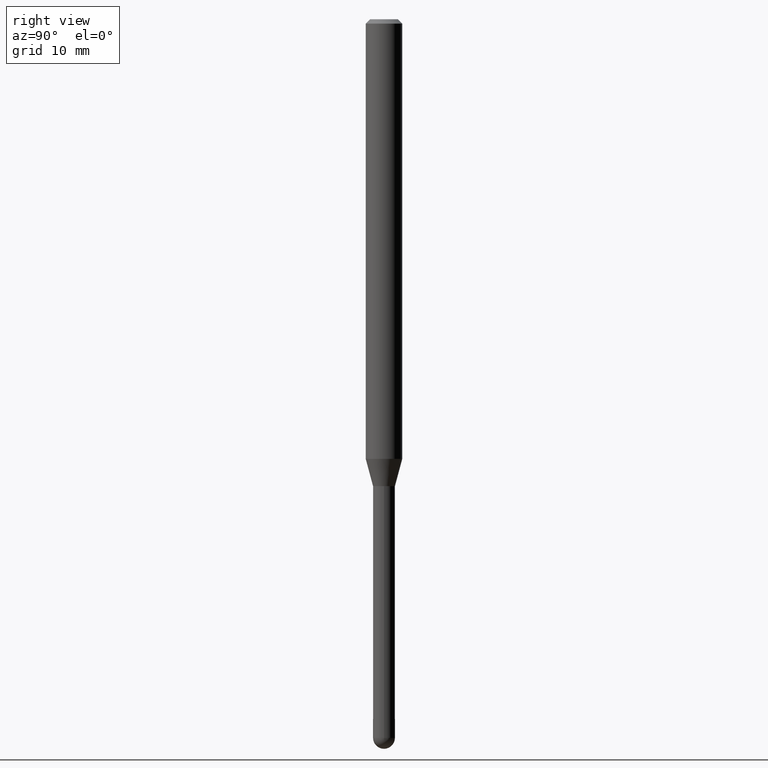
[diagram: clean part render]
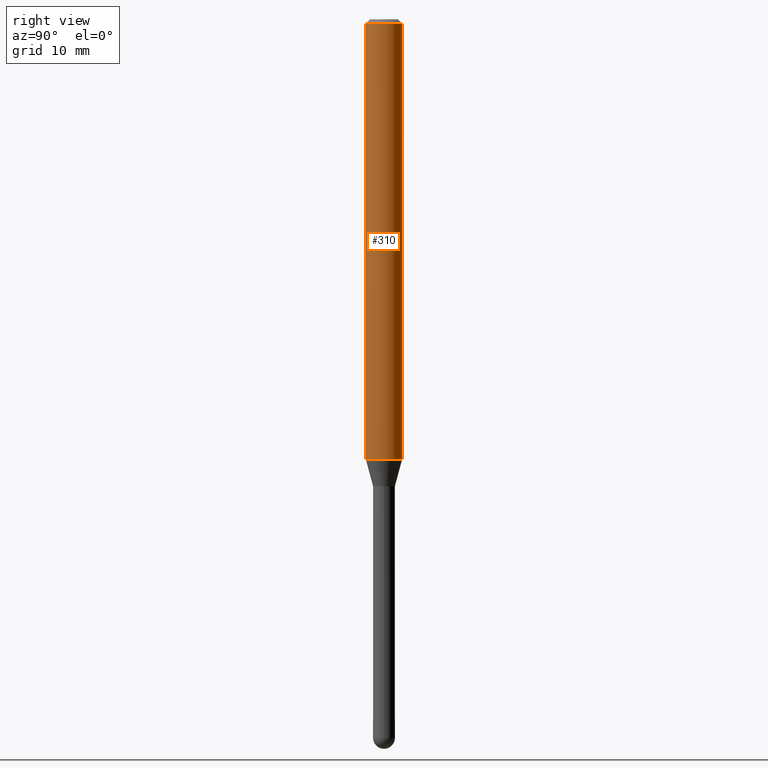
[diagram: same view with one face highlighted and labeled with its STEP entity id]
A machine part, right view. The second image highlights one B-rep face of the part: STEP entity #310.
In plain terms, the highlighted cylindrical surface (edge-blend (fillet) strip) has radius 1.5875 mm, axis along (-0, 0, 1).
Its self-contained STEP definition (entity closure, byte-faithful):
#16 = DIRECTION ( 'NONE',  ( -2.445449366316868324E-29, 3.491509177840954321E-15, 1.000000000000000000 ) ) ;
#26 = EDGE_CURVE ( 'NONE', #428, #360, #108, .T. ) ;
#29 = CARTESIAN_POINT ( 'NONE',  ( 3.684555454046204946E-29, -5.260652443375649758E-15, -1.506698729810781012 ) ) ;
#38 = VERTEX_POINT ( 'NONE', #145 ) ;
#73 = DIRECTION ( 'NONE',  ( -6.982962677686265922E-15, -1.000000000000000000, 4.370956789862821150E-15 ) ) ;
#75 = ORIENTED_EDGE ( 'NONE', *, *, #26, .T. ) ;
#106 = DIRECTION ( 'NONE',  ( -6.982962677686265922E-15, -1.000000000000000000, 3.491509177840954321E-15 ) ) ;
#108 = CIRCLE ( 'NONE', #248, 0.06250000000000000000 ) ;
#115 = DIRECTION ( 'NONE',  ( -2.445449366316868324E-29, 3.491509177840954321E-15, 1.000000000000000000 ) ) ;
#121 = CARTESIAN_POINT ( 'NONE',  ( -4.364351673553550860E-16, -0.06250000000000530131, -1.506698729810780790 ) ) ;
#135 = LINE ( 'NONE', #138, #261 ) ;
#138 = CARTESIAN_POINT ( 'NONE',  ( 4.440892098500625669E-16, 0.06250000000000000000, -2.182193236150596451E-16 ) ) ;
#145 = CARTESIAN_POINT ( 'NONE',  ( 4.440892098500996926E-16, 0.06249999999999995837, -0.01500000000000028394 ) ) ;
#153 = CARTESIAN_POINT ( 'NONE',  ( -4.364351673553916201E-16, -0.06250000000000000000, 2.182193236150596451E-16 ) ) ;
#156 = EDGE_LOOP ( 'NONE', ( #75, #227, #407, #196 ) ) ;
#179 = DIRECTION ( 'NONE',  ( -2.445449366316868324E-29, 3.491509177840954321E-15, 1.000000000000000000 ) ) ;
#182 = CARTESIAN_POINT ( 'NONE',  ( 4.440892098500991010E-16, 0.06249999999999470562, -1.506698729810781234 ) ) ;
#196 = ORIENTED_EDGE ( 'NONE', *, *, #396, .F. ) ;
#210 = CARTESIAN_POINT ( 'NONE',  ( 0.000000000000000000, 0.000000000000000000, 0.000000000000000000 ) ) ;
#225 = CIRCLE ( 'NONE', #289, 0.06250000000000000000 ) ;
#227 = ORIENTED_EDGE ( 'NONE', *, *, #475, .T. ) ;
#246 = DIRECTION ( 'NONE',  ( -2.445449366316868604E-29, 3.491509177840953927E-15, 1.000000000000000000 ) ) ;
#248 = AXIS2_PLACEMENT_3D ( 'NONE', #29, #115, #73 ) ;
#253 = FACE_OUTER_BOUND ( 'NONE', #156, .T. ) ;
#261 = VECTOR ( 'NONE', #246, 39.37007874015748143 ) ;
#289 = AXIS2_PLACEMENT_3D ( 'NONE', #366, #16, #487 ) ;
#304 = VERTEX_POINT ( 'NONE', #367 ) ;
#310 = ADVANCED_FACE ( 'NONE', ( #253 ), #417, .T. ) ;
#360 = VERTEX_POINT ( 'NONE', #182 ) ;
#366 = CARTESIAN_POINT ( 'NONE',  ( 3.668174049475319214E-31, -5.237263766761454039E-17, -0.01500000000000006710 ) ) ;
#367 = CARTESIAN_POINT ( 'NONE',  ( -4.364351673553912750E-16, -0.06250000000000005551, -0.01499999999999984852 ) ) ;
#380 = AXIS2_PLACEMENT_3D ( 'NONE', #210, #179, #106 ) ;
#396 = EDGE_CURVE ( 'NONE', #428, #304, #508, .T. ) ;
#400 = VECTOR ( 'NONE', #468, 39.37007874015748143 ) ;
#407 = ORIENTED_EDGE ( 'NONE', *, *, #459, .F. ) ;
#417 = CYLINDRICAL_SURFACE ( 'NONE', #380, 0.06250000000000000000 ) ;
#428 = VERTEX_POINT ( 'NONE', #121 ) ;
#459 = EDGE_CURVE ( 'NONE', #304, #38, #225, .T. ) ;
#468 = DIRECTION ( 'NONE',  ( -2.445449366316868604E-29, 3.491509177840953927E-15, 1.000000000000000000 ) ) ;
#475 = EDGE_CURVE ( 'NONE', #360, #38, #135, .T. ) ;
#487 = DIRECTION ( 'NONE',  ( -6.982962677686265922E-15, -1.000000000000000000, 3.483106191921935554E-15 ) ) ;
#508 = LINE ( 'NONE', #153, #400 ) ;